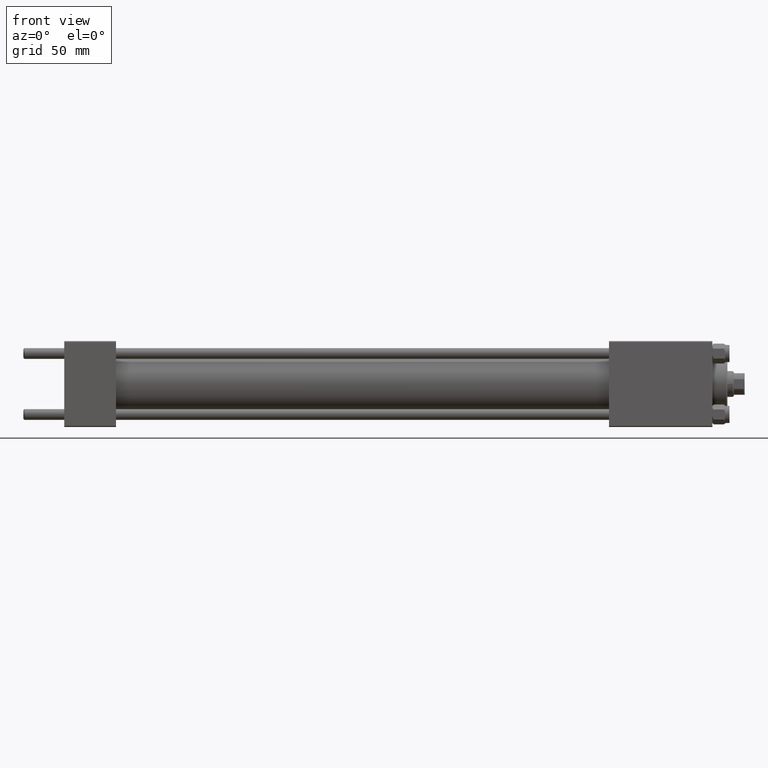
[diagram: clean part render]
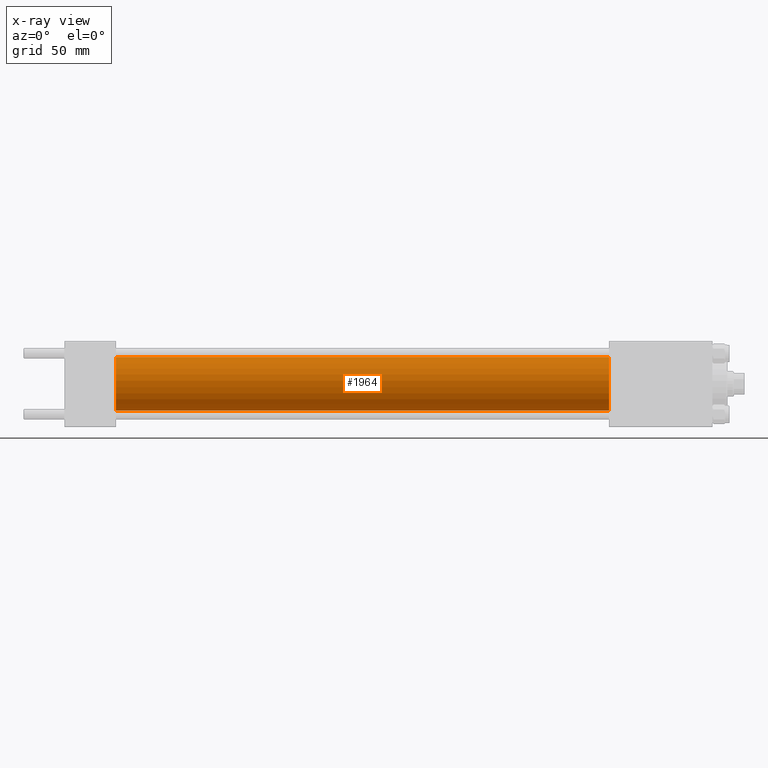
[diagram: x-ray — body ghosted, one internal face saturated and labeled with its STEP entity id]
A machine part, front view, then the same camera in x-ray: the body is ghosted and one INTERNAL B-rep face — a face not visible from any outside direction — is saturated and labeled: STEP entity #1964.
In plain terms, the highlighted cylindrical surface (edge-blend (fillet) strip) has radius 12.5 mm, axis along (-1, -0, -0).
Its self-contained STEP definition (entity closure, byte-faithful):
#704 = EDGE_CURVE ( 'NONE', #46887, #43718, #17601, .T. ) ;
#923 = CARTESIAN_POINT ( 'NONE',  ( 24.00000000000000000, 1.530808498934190732E-15, -12.49999999999999645 ) ) ;
#1964 = ADVANCED_FACE ( 'NONE', ( #3708 ), #41225, .F. ) ;
#3708 = FACE_OUTER_BOUND ( 'NONE', #21145, .T. ) ;
#7160 = LINE ( 'NONE', #26761, #26596 ) ;
#7244 = DIRECTION ( 'NONE',  ( -1.000000000000000000, -0.000000000000000000, -0.000000000000000000 ) ) ;
#8096 = CARTESIAN_POINT ( 'NONE',  ( 253.0000000000000000, 0.000000000000000000, 12.49999999999999645 ) ) ;
#9411 = DIRECTION ( 'NONE',  ( 1.000000000000000000, 0.000000000000000000, 0.000000000000000000 ) ) ;
#10846 = DIRECTION ( 'NONE',  ( 0.000000000000000000, 0.000000000000000000, -1.000000000000000000 ) ) ;
#14147 = LINE ( 'NONE', #29495, #21377 ) ;
#14307 = EDGE_CURVE ( 'NONE', #17586, #43718, #7160, .T. ) ;
#15272 = DIRECTION ( 'NONE',  ( 0.000000000000000000, 0.000000000000000000, 1.000000000000000000 ) ) ;
#15628 = ORIENTED_EDGE ( 'NONE', *, *, #39429, .T. ) ;
#17586 = VERTEX_POINT ( 'NONE', #48468 ) ;
#17601 = CIRCLE ( 'NONE', #42509, 12.49999999999999645 ) ;
#18049 = CARTESIAN_POINT ( 'NONE',  ( 253.0000000000000000, 0.000000000000000000, 0.000000000000000000 ) ) ;
#19138 = ORIENTED_EDGE ( 'NONE', *, *, #14307, .T. ) ;
#19798 = ORIENTED_EDGE ( 'NONE', *, *, #49531, .F. ) ;
#21145 = EDGE_LOOP ( 'NONE', ( #15628, #19138, #34449, #19798 ) ) ;
#21377 = VECTOR ( 'NONE', #44871, 1000.000000000000000 ) ;
#22083 = VERTEX_POINT ( 'NONE', #8096 ) ;
#24764 = CARTESIAN_POINT ( 'NONE',  ( 253.0000000000000000, 0.000000000000000000, 0.000000000000000000 ) ) ;
#26596 = VECTOR ( 'NONE', #42121, 1000.000000000000000 ) ;
#26761 = CARTESIAN_POINT ( 'NONE',  ( 253.0000000000000000, 1.530808498934190732E-15, -12.49999999999999645 ) ) ;
#26885 = CARTESIAN_POINT ( 'NONE',  ( 24.00000000000000000, 0.000000000000000000, 12.49999999999999645 ) ) ;
#29495 = CARTESIAN_POINT ( 'NONE',  ( 253.0000000000000000, 0.000000000000000000, 12.49999999999999645 ) ) ;
#30841 = AXIS2_PLACEMENT_3D ( 'NONE', #24764, #9411, #40133 ) ;
#31297 = AXIS2_PLACEMENT_3D ( 'NONE', #18049, #7244, #15272 ) ;
#34449 = ORIENTED_EDGE ( 'NONE', *, *, #704, .F. ) ;
#37279 = CIRCLE ( 'NONE', #30841, 12.49999999999999645 ) ;
#39429 = EDGE_CURVE ( 'NONE', #22083, #17586, #37279, .T. ) ;
#40133 = DIRECTION ( 'NONE',  ( 0.000000000000000000, 0.000000000000000000, -1.000000000000000000 ) ) ;
#41225 = CYLINDRICAL_SURFACE ( 'NONE', #31297, 12.49999999999999645 ) ;
#42121 = DIRECTION ( 'NONE',  ( -1.000000000000000000, -0.000000000000000000, -0.000000000000000000 ) ) ;
#42509 = AXIS2_PLACEMENT_3D ( 'NONE', #49146, #45357, #10846 ) ;
#43718 = VERTEX_POINT ( 'NONE', #923 ) ;
#44871 = DIRECTION ( 'NONE',  ( -1.000000000000000000, -0.000000000000000000, -0.000000000000000000 ) ) ;
#45357 = DIRECTION ( 'NONE',  ( 1.000000000000000000, 0.000000000000000000, 0.000000000000000000 ) ) ;
#46887 = VERTEX_POINT ( 'NONE', #26885 ) ;
#48468 = CARTESIAN_POINT ( 'NONE',  ( 253.0000000000000000, 1.530808498934190732E-15, -12.49999999999999645 ) ) ;
#49146 = CARTESIAN_POINT ( 'NONE',  ( 24.00000000000000000, 0.000000000000000000, 0.000000000000000000 ) ) ;
#49531 = EDGE_CURVE ( 'NONE', #22083, #46887, #14147, .T. ) ;